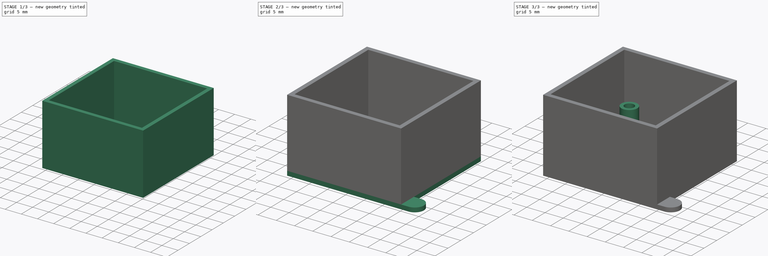
[diagram: build sequence overview — one tinted view per stage of 3, left to right]
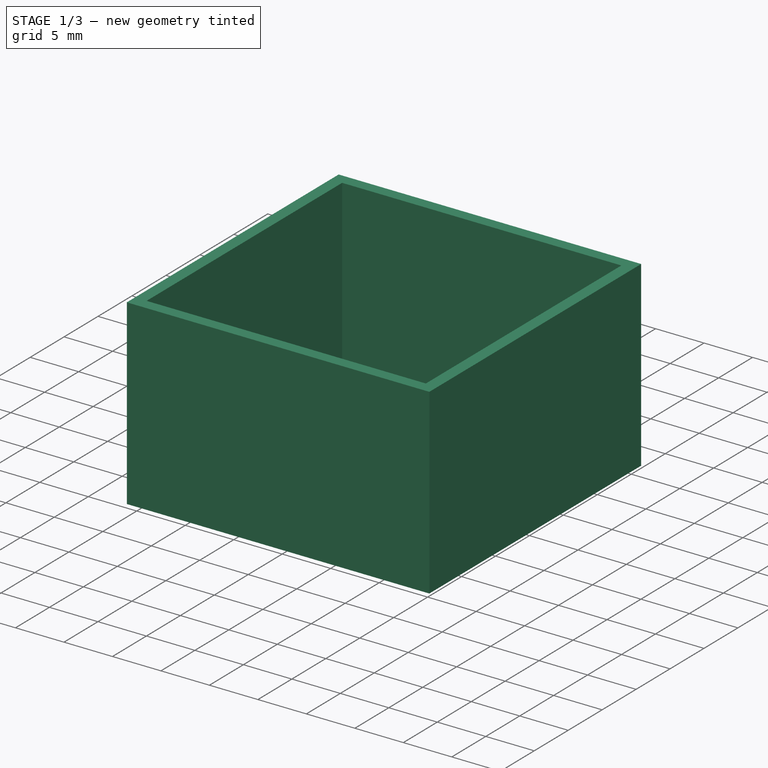
[diagram: stage 1 of 3 — iso view after this stage's code; geometry added in this stage tinted green]
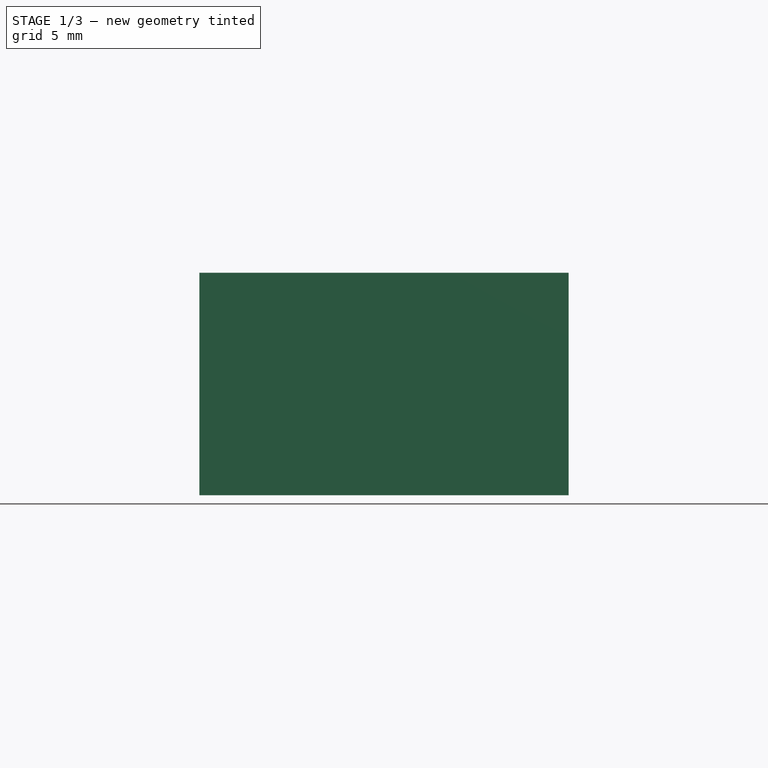
[diagram: stage 1 of 3 — front view after this stage's code; geometry added in this stage tinted green]
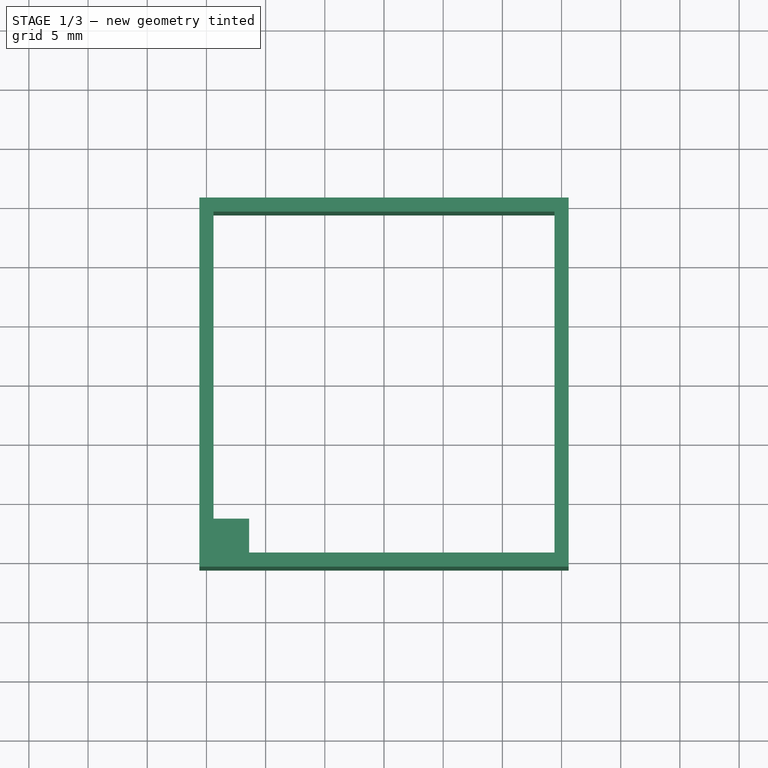
[diagram: stage 1 of 3 — top view after this stage's code; geometry added in this stage tinted green]
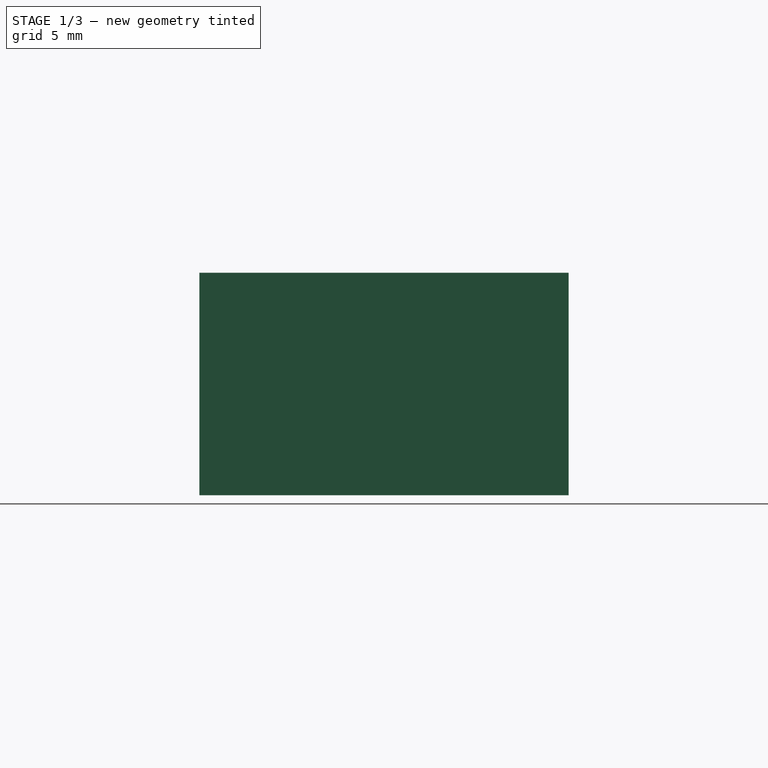
[diagram: stage 1 of 3 — right view after this stage's code; geometry added in this stage tinted green]
FCSTD DOCUMENT  (FreeCAD 0.14R3702 (Git))
Label: RTC case
License: CC-BY 3.0
LicenseURL: http://creativecommons.org/licenses/by/3.0/
objects: Sketcher::SketchObject×4, PartDesign::Pad×4, Part::MultiFuse×1
note: 13 computed .brp shape members not serialized (recipe doc carries the construction recipe); baked Part::Feature solids carry a one-line shape summary decoded from their .brp

FEATURE [PartDesign::Pad] Pad002
  Length = 18.8
  Length2 = 100
  Placement = pos=(0,0,1.2) rot=(0,0,1;0rad)
  Sketch = -> Sketch
  Type = 0
FEATURE [Sketcher::SketchObject] Sketch003  label="corner_pcb_holddown"
  Placement = pos=(0,0,10) rot=(0,0,1;0rad)
  sketch-geometry (8):
    g0: LineSegment [constr] StartX=-14.4 StartY=14.4 StartZ=0 EndX=14.4 EndY=14.4 EndZ=0
    g1: LineSegment [constr] StartX=14.4 StartY=14.4 StartZ=0 EndX=14.4 EndY=-14.4 EndZ=0
    g2: LineSegment [constr] StartX=14.4 StartY=-14.4 StartZ=0 EndX=-14.4 EndY=-14.4 EndZ=0
    g3: LineSegment [constr] StartX=-14.4 StartY=-14.4 StartZ=0 EndX=-14.4 EndY=14.4 EndZ=0
    g4: LineSegment StartX=-11.4 StartY=-14.4 StartZ=0 EndX=-14.4 EndY=-14.4 EndZ=0
    g5: LineSegment StartX=-14.4 StartY=-14.4 StartZ=0 EndX=-14.4 EndY=-11.4 EndZ=0
    g6: LineSegment StartX=-14.4 StartY=-11.4 StartZ=0 EndX=-11.4 EndY=-11.4 EndZ=0
    g7: LineSegment StartX=-11.4 StartY=-11.4 StartZ=0 EndX=-11.4 EndY=-14.4 EndZ=0
  constraints (23):
    c: Coincident(g0,g1)
    c: Coincident(g1,g2)
    c: Coincident(g2,g3)
    c: Coincident(g3,g0)
    c: Horizontal(g0)
    c: Horizontal(g2)
    c: Vertical(g1)
    c: Vertical(g3)
    c: Symmetric(g1,g2,g-2)
    c: Symmetric(g0,g1,g-1)
    c: Equal(g0,g1)
    c: DistanceX(g0) = 28.8
    c: PointOnObject(g5,g3)
    c: Horizontal(g4)
    c: Coincident(g4,g5)
    c: Equal(g4,g5)
    c: DistanceX(g4) = -3
    c: Coincident(g4,g2)
    c: Coincident(g5,g6)
    c: Horizontal(g6)
    c: Coincident(g6,g7)
    c: Vertical(g7)
    c: Coincident(g7,g4)
FEATURE [PartDesign::Pad] Pad003
  Length = 2
  Length2 = 100
  Placement = pos=(0,0,10) rot=(0,0,1;0rad)
  Sketch = -> Sketch003
  Type = 0
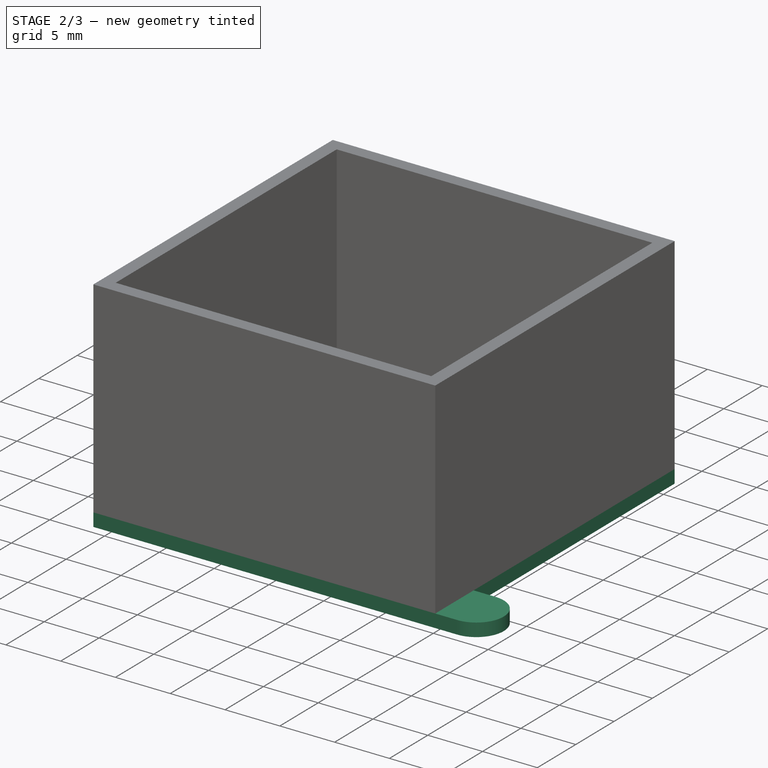
[diagram: stage 2 of 3 — iso view after this stage's code; geometry added in this stage tinted green]
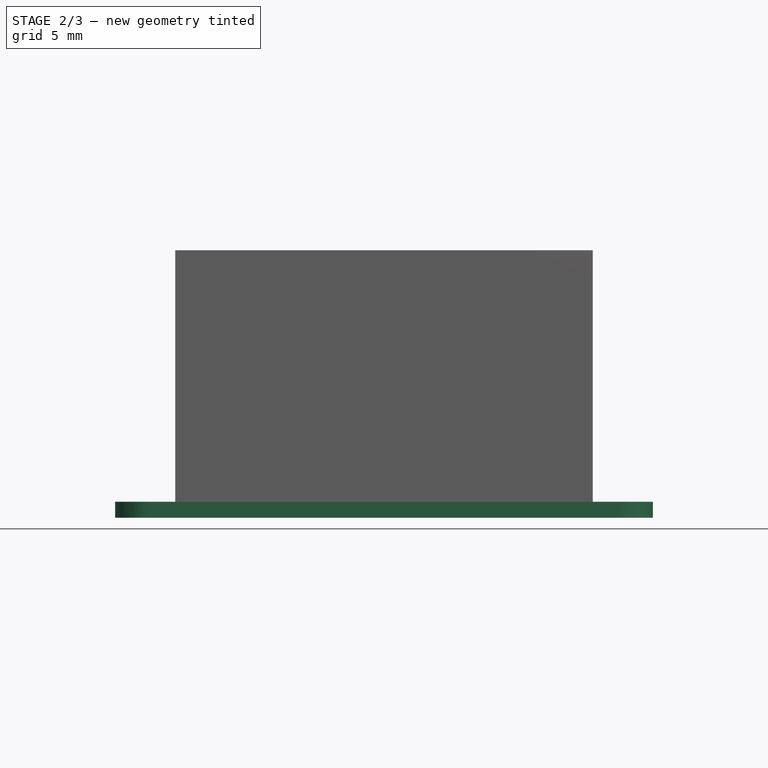
[diagram: stage 2 of 3 — front view after this stage's code; geometry added in this stage tinted green]
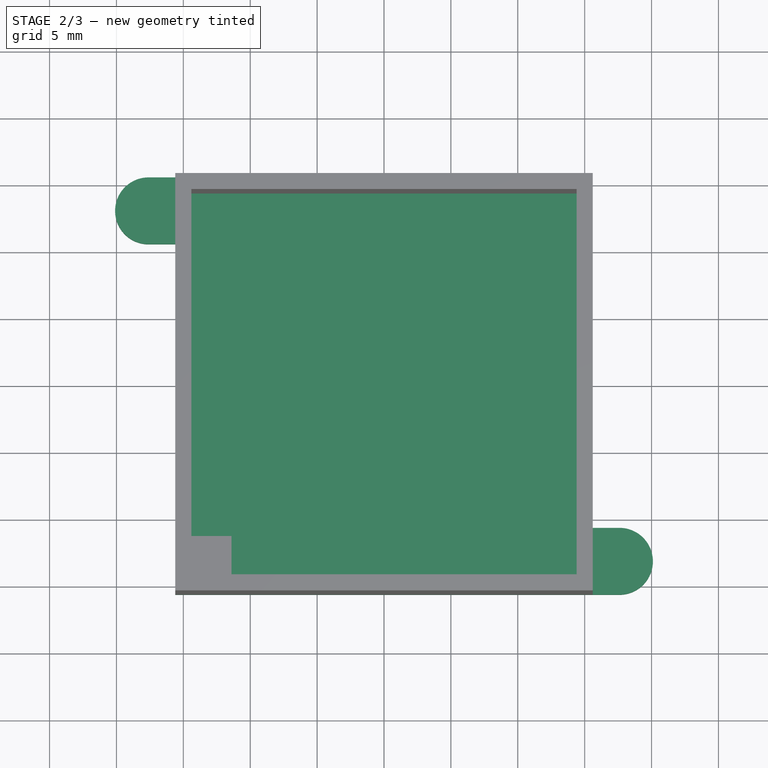
[diagram: stage 2 of 3 — top view after this stage's code; geometry added in this stage tinted green]
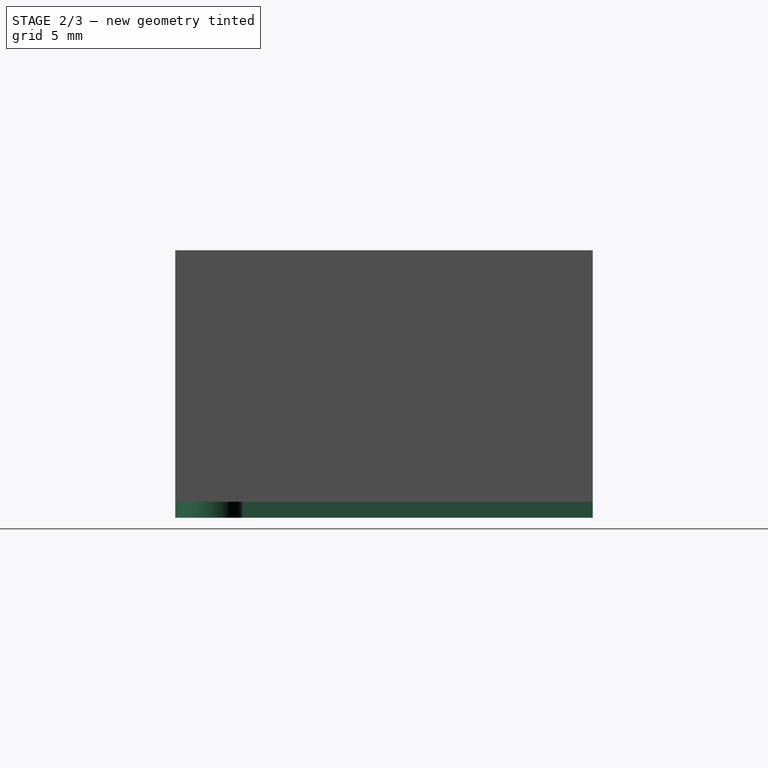
[diagram: stage 2 of 3 — right view after this stage's code; geometry added in this stage tinted green]
FEATURE [PartDesign::Pad] Pad001
  Length = 1.2
  Length2 = 100
  Sketch = -> Sketch001
  Type = 0
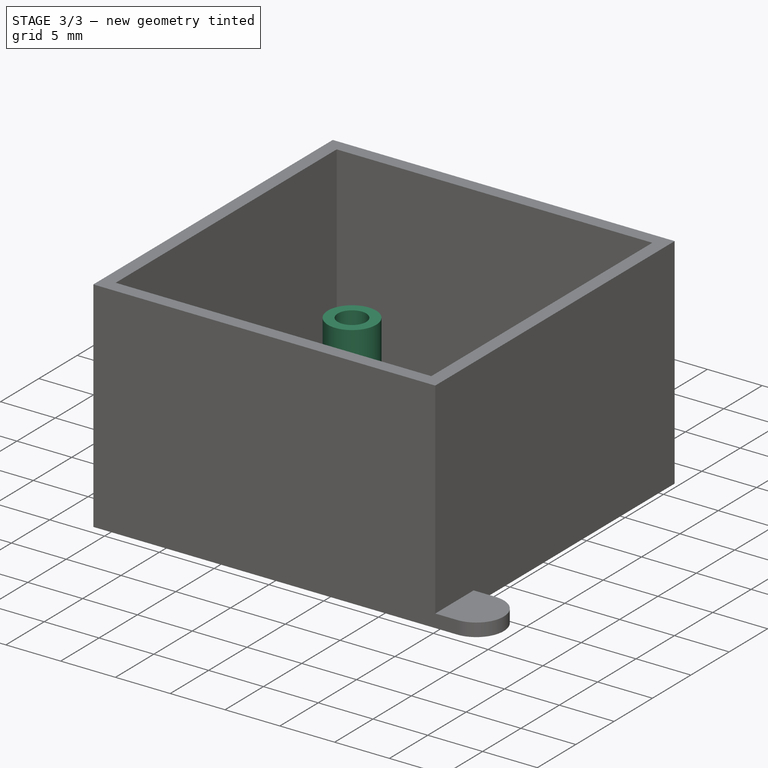
[diagram: stage 3 of 3 — iso view after this stage's code; geometry added in this stage tinted green]
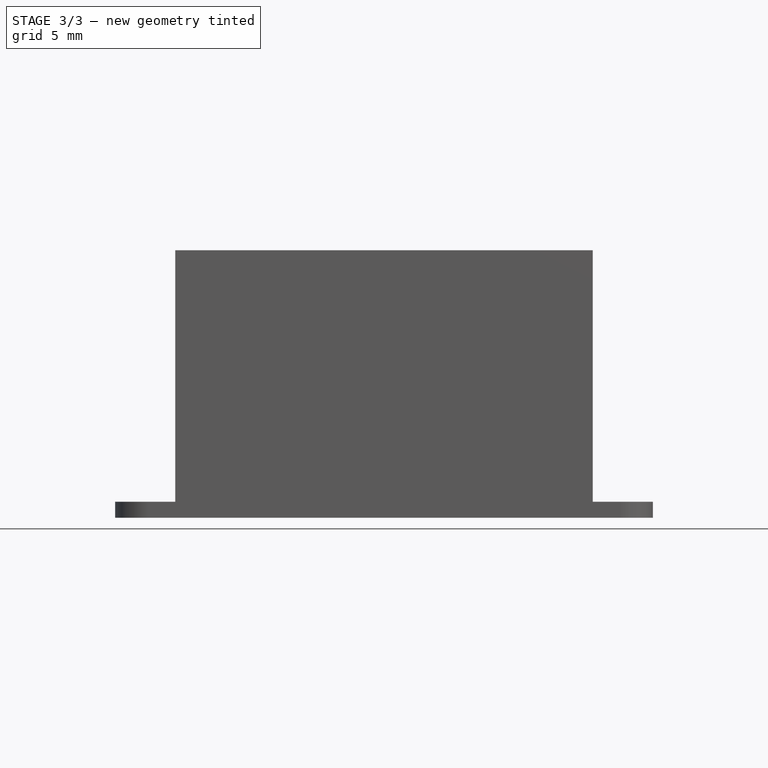
[diagram: stage 3 of 3 — front view after this stage's code; geometry added in this stage tinted green]
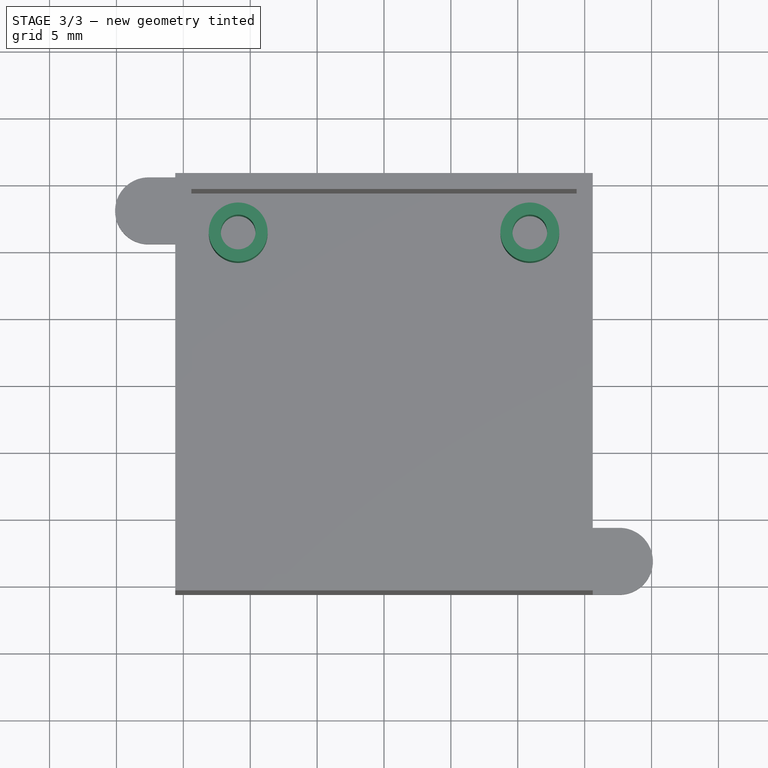
[diagram: stage 3 of 3 — top view after this stage's code; geometry added in this stage tinted green]
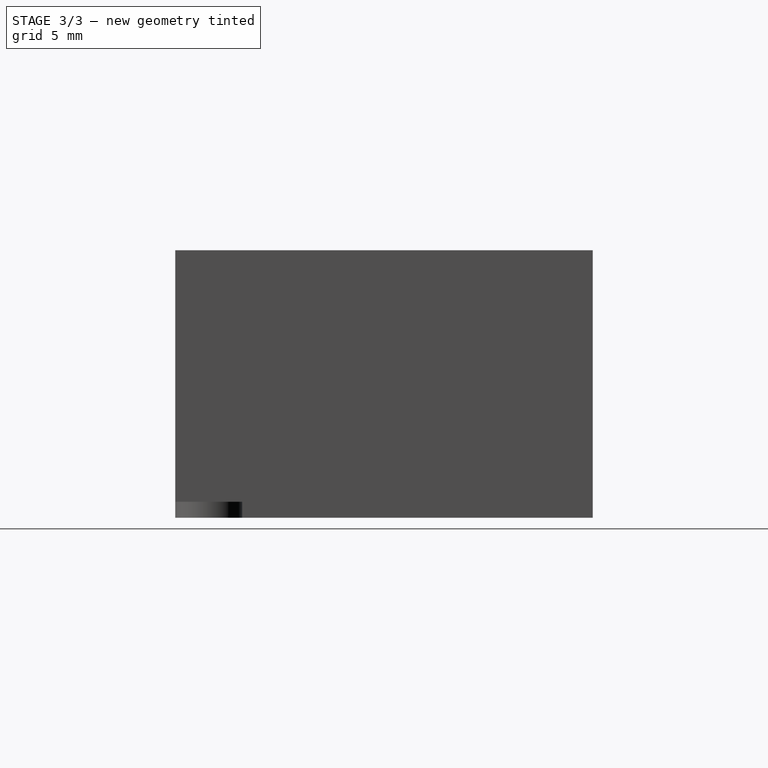
[diagram: stage 3 of 3 — right view after this stage's code; geometry added in this stage tinted green]
FEATURE [Sketcher::SketchObject] Sketch  label="wall"
  Placement = pos=(0,0,1.2) rot=(0,0,1;0rad)
  sketch-geometry (8):
    g0: LineSegment StartX=-14.4 StartY=14.4 StartZ=0 EndX=14.4 EndY=14.4 EndZ=0
    g1: LineSegment StartX=14.4 StartY=14.4 StartZ=0 EndX=14.4 EndY=-14.4 EndZ=0
    g2: LineSegment StartX=14.4 StartY=-14.4 StartZ=0 EndX=-14.4 EndY=-14.4 EndZ=0
    g3: LineSegment StartX=-14.4 StartY=-14.4 StartZ=0 EndX=-14.4 EndY=14.4 EndZ=0
    g4: LineSegment StartX=-15.6 StartY=15.6 StartZ=0 EndX=15.6 EndY=15.6 EndZ=0
    g5: LineSegment StartX=15.6 StartY=15.6 StartZ=0 EndX=15.6 EndY=-15.6 EndZ=0
    g6: LineSegment StartX=15.6 StartY=-15.6 StartZ=0 EndX=-15.6 EndY=-15.6 EndZ=0
    g7: LineSegment StartX=-15.6 StartY=-15.6 StartZ=0 EndX=-15.6 EndY=15.6 EndZ=0
  constraints (24):
    c: Coincident(g0,g1)
    c: Coincident(g1,g2)
    c: Coincident(g2,g3)
    c: Coincident(g3,g0)
    c: Horizontal(g0)
    c: Horizontal(g2)
    c: Vertical(g1)
    c: Vertical(g3)
    c: Symmetric(g1,g2,g-2)
    c: Symmetric(g0,g1,g-1)
    c: Equal(g0,g1)
    c: DistanceX(g0) = 28.8
    c: Coincident(g4,g5)
    c: Coincident(g5,g6)
    c: Coincident(g6,g7)
    c: Coincident(g7,g4)
    c: Horizontal(g4)
    c: Horizontal(g6)
    c: Vertical(g5)
    c: Vertical(g7)
    c: Equal(g5,g4)
    c: Symmetric(g4,g5,g-1)
    c: Symmetric(g4,g4,g-2)
    c: DistanceX(g0,g4) = 1.2
FEATURE [Sketcher::SketchObject] Sketch001  label="base"
  sketch-geometry (14):
    g0: LineSegment [constr] StartX=-14.4 StartY=14.4 StartZ=0 EndX=14.4 EndY=14.4 EndZ=0
    g1: LineSegment [constr] StartX=14.4 StartY=14.4 StartZ=0 EndX=14.4 EndY=-14.4 EndZ=0
    g2: LineSegment [constr] StartX=14.4 StartY=-14.4 StartZ=0 EndX=-14.4 EndY=-14.4 EndZ=0
    g3: LineSegment [constr] StartX=-14.4 StartY=-14.4 StartZ=0 EndX=-14.4 EndY=14.4 EndZ=0
    g4: LineSegment StartX=-15.6 StartY=15.6 StartZ=0 EndX=15.6 EndY=15.6 EndZ=0
    g5: LineSegment StartX=15.6 StartY=15.6 StartZ=0 EndX=15.6 EndY=-10.6 EndZ=0
    g6: LineSegment StartX=15.6 StartY=-15.6 StartZ=0 EndX=-15.6 EndY=-15.6 EndZ=0
    g7: LineSegment StartX=-15.6 StartY=-15.6 StartZ=0 EndX=-15.6 EndY=10.6 EndZ=0
    g8: ArcOfCircle CenterX=17.6 CenterY=-13.1 CenterZ=0 NormalX=0 NormalY=0 NormalZ=1 Radius=2.5 StartAngle=4.7124 EndAngle=7.85398
    g9: LineSegment StartX=15.6 StartY=-15.6 StartZ=0 EndX=17.6 EndY=-15.6 EndZ=0
    g10: LineSegment StartX=15.6 StartY=-10.6 StartZ=0 EndX=17.6 EndY=-10.6 EndZ=0
    g11: ArcOfCircle CenterX=-17.6 CenterY=13.1 CenterZ=0 NormalX=0 NormalY=0 NormalZ=1 Radius=2.5 StartAngle=1.5708 EndAngle=4.71239
    g12: LineSegment StartX=-17.6 StartY=10.6 StartZ=0 EndX=-15.6 EndY=10.6 EndZ=0
    g13: LineSegment StartX=-17.6 StartY=15.6 StartZ=0 EndX=-15.6 EndY=15.6 EndZ=0
  constraints (44):
    c: Coincident(g0,g1)
    c: Coincident(g1,g2)
    c: Coincident(g2,g3)
    c: Coincident(g3,g0)
    c: Horizontal(g0)
    c: Horizontal(g2)
    c: Vertical(g1)
    c: Vertical(g3)
    c: Symmetric(g1,g2,g-2)
    c: Symmetric(g0,g1,g-1)
    c: Equal(g0,g1)
    c: Coincident(g4,g5)
    c: Coincident(g6,g7)
    c: Horizontal(g4)
    c: Horizontal(g6)
    c: Vertical(g5)
    c: Vertical(g7)
    c: Symmetric(g4,g4,g-2)
    c: DistanceX(g0,g4) = 1.2
    c: Tangent(g8,g9)
    c: Tangent(g8,g10)
    c: Coincident(g9,g8)
    c: Coincident(g10,g8)
    c: Horizontal(g9)
    c: Coincident(g9,g6)
    c: Coincident(g5,g10)
    c: Equal(g4,g6)
    c: Tangent(g11,g12)
    c: Tangent(g11,g13)
    c: Coincident(g11,g13)
    c: Coincident(g11,g12)
    c: Horizontal(g12)
    c: Coincident(g13,g4)
    c: Coincident(g7,g12)
    c: DistanceY(g4,g7) = -5
    c: Horizontal(g13)
    c: Equal(g5,g7)
    c: DistanceY(g0,g4) = 1.2
    c: DistanceX(g0,g0) = -28.8
    c: Equal(g10,g9)
    c: Equal(g9,g13)
    c: Equal(g13,g12)
    c: DistanceX(g9) = 2
    c: DistanceY(g6,g2) = 1.2
FEATURE [Sketcher::SketchObject] Sketch002  label="standoff"
  Placement = pos=(0,0,1.2) rot=(0,0,1;0rad)
  sketch-geometry (13):
    g0: LineSegment [constr] StartX=-14.4 StartY=14.4 StartZ=0 EndX=14.4 EndY=14.4 EndZ=0
    g1: LineSegment [constr] StartX=14.4 StartY=14.4 StartZ=0 EndX=14.4 EndY=-14.4 EndZ=0
    g2: LineSegment [constr] StartX=14.4 StartY=-14.4 StartZ=0 EndX=-14.4 EndY=-14.4 EndZ=0
    g3: LineSegment [constr] StartX=-14.4 StartY=-14.4 StartZ=0 EndX=-14.4 EndY=14.4 EndZ=0
    g4: LineSegment [constr] StartX=-10.9 StartY=11.4 StartZ=0 EndX=10.9 EndY=11.4 EndZ=0
    g5: Circle CenterX=-10.9 CenterY=11.4 CenterZ=0 NormalX=0 NormalY=0 NormalZ=1 Radius=2.2
    g6: Circle CenterX=10.9 CenterY=11.4 CenterZ=0 NormalX=0 NormalY=0 NormalZ=1 Radius=2.2
    g7: Circle CenterX=-10.9 CenterY=11.4 CenterZ=0 NormalX=0 NormalY=0 NormalZ=1 Radius=1.3
    g8: Circle CenterX=10.9 CenterY=11.4 CenterZ=0 NormalX=0 NormalY=0 NormalZ=1 Radius=1.3
    g9: LineSegment StartX=-14.4 StartY=-14.4 StartZ=0 EndX=-11.4 EndY=-14.4 EndZ=0
    g10: LineSegment StartX=-11.4 StartY=-14.4 StartZ=0 EndX=-11.4 EndY=-11.4 EndZ=0
    g11: LineSegment StartX=-11.4 StartY=-11.4 StartZ=0 EndX=-14.4 EndY=-11.4 EndZ=0
    g12: LineSegment StartX=-14.4 StartY=-11.4 StartZ=0 EndX=-14.4 EndY=-14.4 EndZ=0
  constraints (35):
    c: Coincident(g0,g1)
    c: Coincident(g1,g2)
    c: Coincident(g3,g0)
    c: Horizontal(g0)
    c: Horizontal(g2)
    c: Vertical(g1)
    c: Vertical(g3)
    c: Symmetric(g1,g2,g-2)
    c: Symmetric(g0,g1,g-1)
    c: Equal(g0,g1)
    c: DistanceX(g0) = 28.8
    c: Horizontal(g4)
    c: DistanceX(g4,g0) = -3.5
    c: DistanceX(g4,g0) = 3.5
    c: DistanceY(g4,g0) = 3
    c: Coincident(g5,g4)
    c: Coincident(g6,g4)
    c: Equal(g6,g5)
    c: Radius(g5) = 2.2
    c: Coincident(g7,g4)
    c: Coincident(g8,g4)
    c: Equal(g7,g8)
    c: Radius(g8) = 1.3
    c: Coincident(g9,g10)
    c: Coincident(g10,g11)
    c: Coincident(g11,g12)
    c: Coincident(g12,g9)
    c: Horizontal(g9)
    c: Horizontal(g11)
    c: Vertical(g10)
    c: Vertical(g12)
    c: Coincident(g9,g2)
    c: Equal(g10,g11)
    c: DistanceX(g11) = -3
    c: Coincident(g2,g3)
FEATURE [PartDesign::Pad] Pad
  Length = 7
  Length2 = 100
  Placement = pos=(0,0,1.2) rot=(0,0,1;0rad)
  Sketch = -> Sketch002
  Type = 0
FEATURE [Part::MultiFuse] Fusion
  Shapes = -> [Pad001,Pad,Pad002,Pad003]
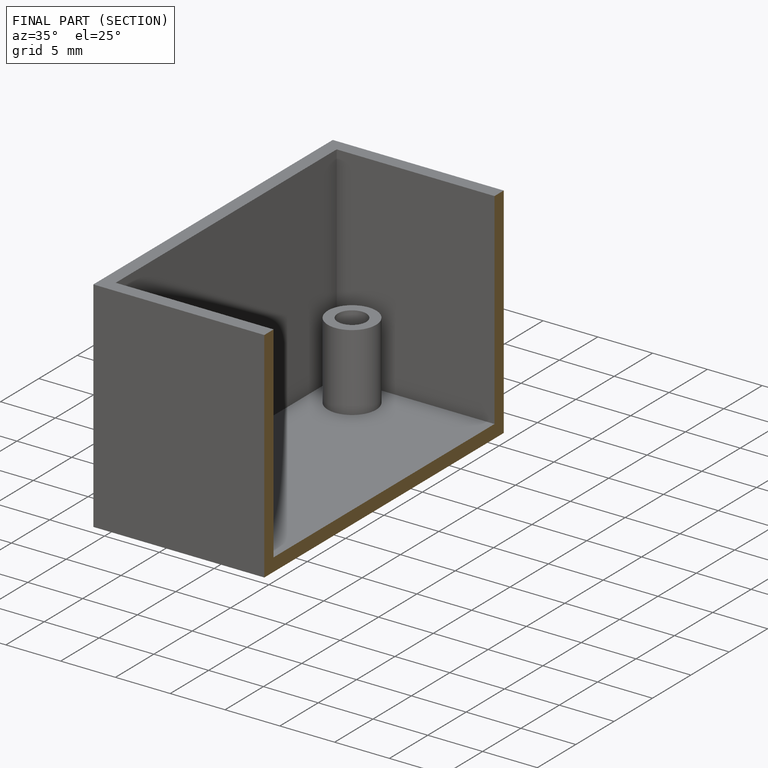
[diagram: finished part — half-section view (interior)]
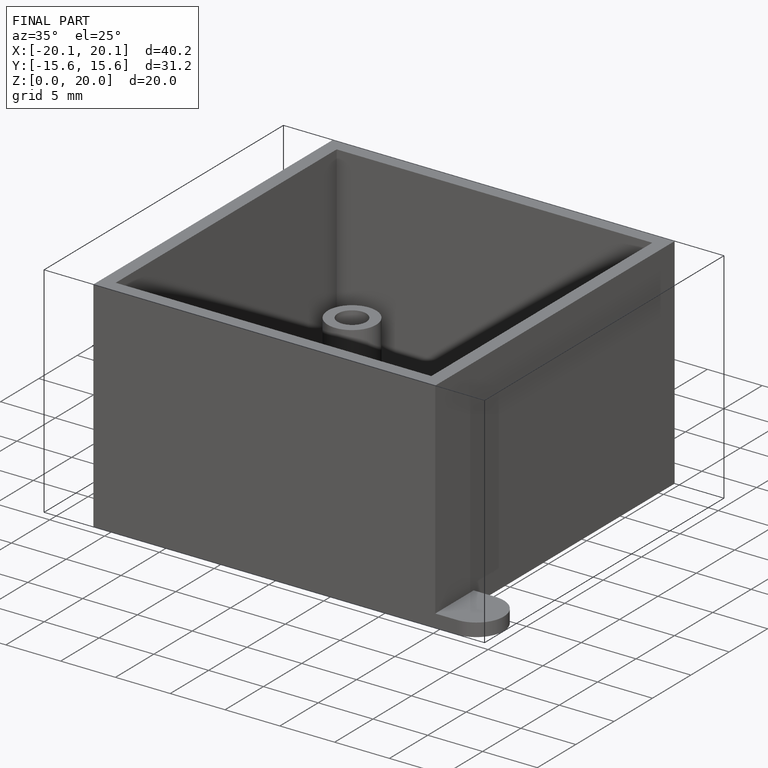
[diagram: finished part — iso view with bounding-box wireframe]
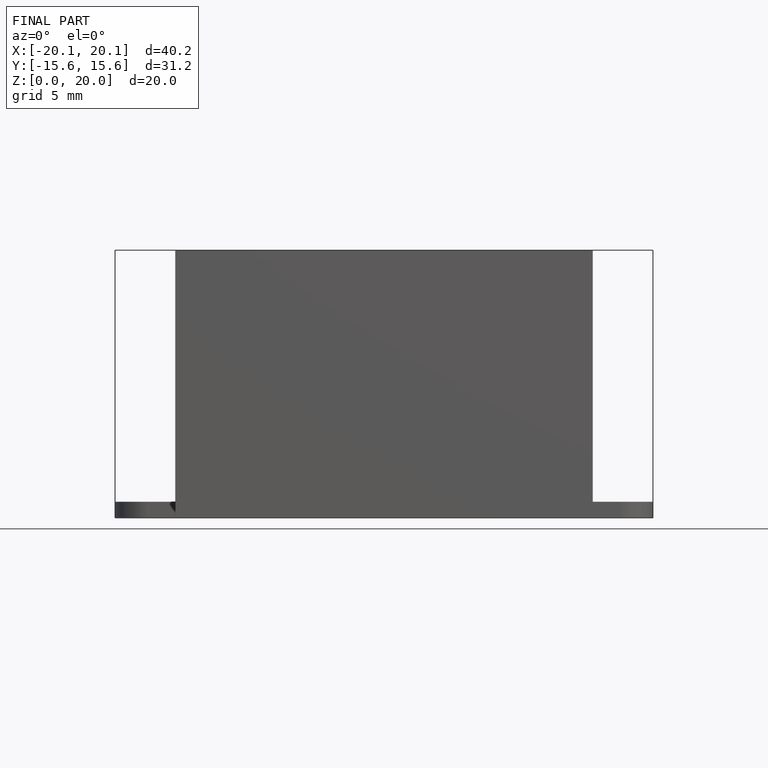
[diagram: finished part — front view with bounding-box wireframe]
